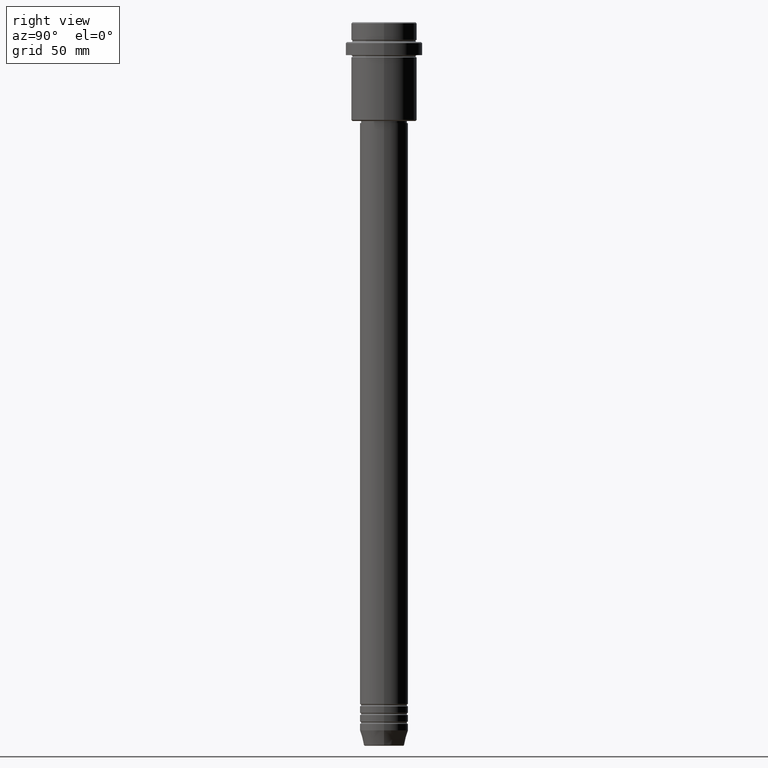
[diagram: clean part render]
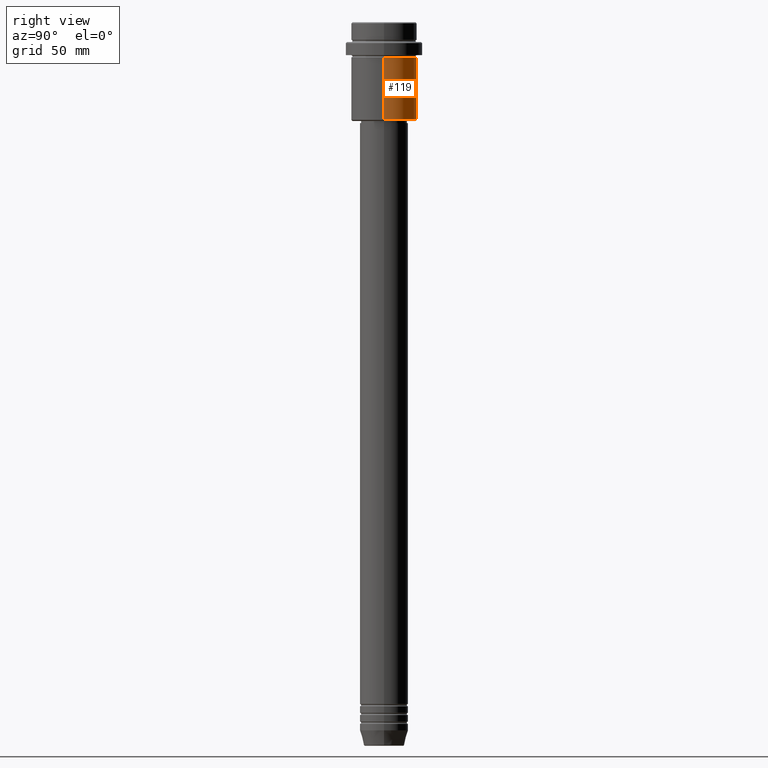
[diagram: same view with one face highlighted and labeled with its STEP entity id]
A machine part, right view. The second image highlights one B-rep face of the part: STEP entity #119.
In plain terms, the highlighted cylindrical surface (edge-blend (fillet) strip) has radius 15 mm, axis along (-0, -0, 1).
Its self-contained STEP definition (entity closure, byte-faithful):
#19 = ORIENTED_EDGE ( 'NONE', *, *, #1399, .F. ) ;
#42 = VERTEX_POINT ( 'NONE', #476 ) ;
#47 = VERTEX_POINT ( 'NONE', #380 ) ;
#48 = DIRECTION ( 'NONE',  ( -1.000000000000000000, 0.000000000000000000, 0.000000000000000000 ) ) ;
#58 = EDGE_LOOP ( 'NONE', ( #552, #150, #19, #479 ) ) ;
#79 = CARTESIAN_POINT ( 'NONE',  ( -15.00000000000000000, 1.836970198721029589E-15, 0.000000000000000000 ) ) ;
#106 = AXIS2_PLACEMENT_3D ( 'NONE', #1026, #1348, #526 ) ;
#119 = ADVANCED_FACE ( 'NONE', ( #742 ), #1275, .T. ) ;
#127 = AXIS2_PLACEMENT_3D ( 'NONE', #1173, #1043, #48 ) ;
#130 = CARTESIAN_POINT ( 'NONE',  ( 15.00000000000000000, 0.000000000000000000, 0.000000000000000000 ) ) ;
#150 = ORIENTED_EDGE ( 'NONE', *, *, #606, .T. ) ;
#273 = LINE ( 'NONE', #130, #1231 ) ;
#366 = EDGE_CURVE ( 'NONE', #47, #42, #273, .T. ) ;
#380 = CARTESIAN_POINT ( 'NONE',  ( 15.00000000000000000, 0.000000000000000000, -44.49999999999994316 ) ) ;
#476 = CARTESIAN_POINT ( 'NONE',  ( 15.00000000000000178, 0.000000000000000000, -16.00000000000000000 ) ) ;
#479 = ORIENTED_EDGE ( 'NONE', *, *, #366, .F. ) ;
#480 = CARTESIAN_POINT ( 'NONE',  ( -15.00000000000000355, 1.836970198721029983E-15, -16.00000000000000000 ) ) ;
#526 = DIRECTION ( 'NONE',  ( 1.000000000000000000, 0.000000000000000000, 0.000000000000000000 ) ) ;
#537 = DIRECTION ( 'NONE',  ( -0.000000000000000000, -0.000000000000000000, 1.000000000000000000 ) ) ;
#552 = ORIENTED_EDGE ( 'NONE', *, *, #1416, .T. ) ;
#606 = EDGE_CURVE ( 'NONE', #1003, #803, #644, .T. ) ;
#644 = LINE ( 'NONE', #79, #1077 ) ;
#742 = FACE_OUTER_BOUND ( 'NONE', #58, .T. ) ;
#803 = VERTEX_POINT ( 'NONE', #480 ) ;
#843 = DIRECTION ( 'NONE',  ( -0.000000000000000000, -0.000000000000000000, 1.000000000000000000 ) ) ;
#855 = AXIS2_PLACEMENT_3D ( 'NONE', #1084, #843, #1295 ) ;
#940 = DIRECTION ( 'NONE',  ( -0.000000000000000000, -0.000000000000000000, 1.000000000000000000 ) ) ;
#1003 = VERTEX_POINT ( 'NONE', #1062 ) ;
#1011 = CIRCLE ( 'NONE', #127, 15.00000000000000000 ) ;
#1026 = CARTESIAN_POINT ( 'NONE',  ( 0.000000000000000000, 0.000000000000000000, -16.00000000000000000 ) ) ;
#1043 = DIRECTION ( 'NONE',  ( -0.000000000000000000, -0.000000000000000000, 1.000000000000000000 ) ) ;
#1062 = CARTESIAN_POINT ( 'NONE',  ( -15.00000000000000000, 1.836970198721029589E-15, -44.49999999999994316 ) ) ;
#1077 = VECTOR ( 'NONE', #537, 1000.000000000000000 ) ;
#1084 = CARTESIAN_POINT ( 'NONE',  ( 0.000000000000000000, 0.000000000000000000, 0.000000000000000000 ) ) ;
#1173 = CARTESIAN_POINT ( 'NONE',  ( 0.000000000000000000, 0.000000000000000000, -44.49999999999994316 ) ) ;
#1231 = VECTOR ( 'NONE', #940, 1000.000000000000000 ) ;
#1275 = CYLINDRICAL_SURFACE ( 'NONE', #855, 15.00000000000000000 ) ;
#1295 = DIRECTION ( 'NONE',  ( 1.000000000000000000, 0.000000000000000000, 0.000000000000000000 ) ) ;
#1305 = CIRCLE ( 'NONE', #106, 15.00000000000000178 ) ;
#1348 = DIRECTION ( 'NONE',  ( -0.000000000000000000, -0.000000000000000000, 1.000000000000000000 ) ) ;
#1399 = EDGE_CURVE ( 'NONE', #42, #803, #1305, .T. ) ;
#1416 = EDGE_CURVE ( 'NONE', #47, #1003, #1011, .T. ) ;